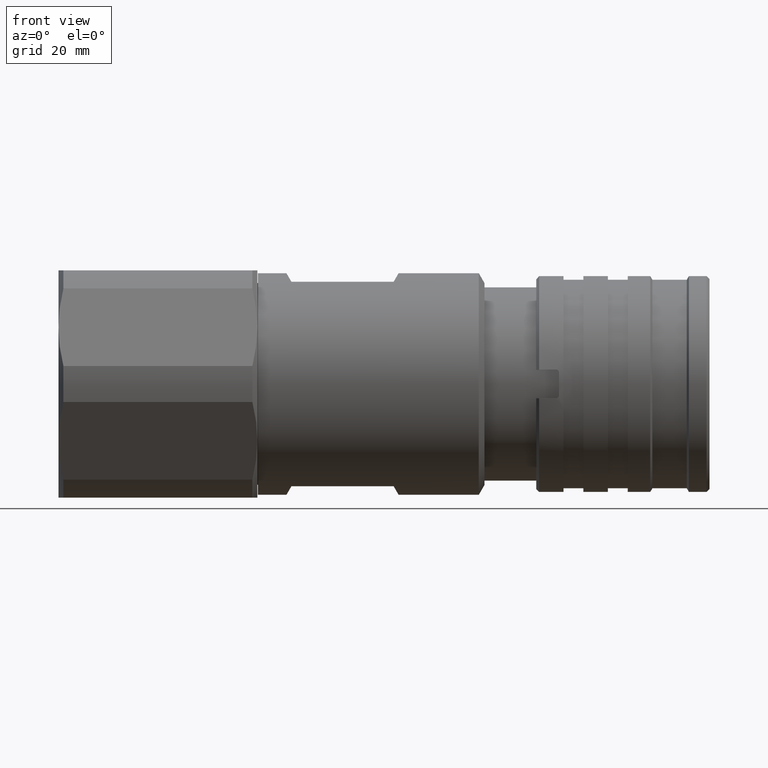
[diagram: clean part render]
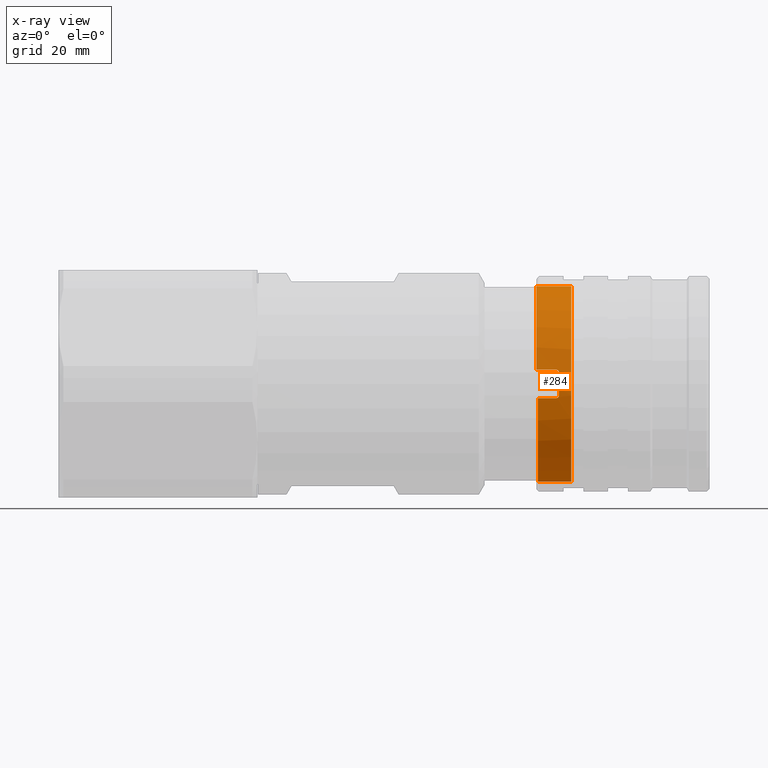
[diagram: x-ray — body ghosted, one internal face saturated and labeled with its STEP entity id]
A machine part, front view, then the same camera in x-ray: the body is ghosted and one INTERNAL B-rep face — a face not visible from any outside direction — is saturated and labeled: STEP entity #284.
In plain terms, the highlighted cylindrical surface (partial cylindrical patch) has radius 17.2 mm, axis along (-1, -0, -0).
Its self-contained STEP definition (entity closure, byte-faithful):
#281 = CARTESIAN_POINT ( 'NONE',  ( 22.39999999999999500, 0.0000000000000000000, 17.19999999999999900 ) ) ;
#283 = DIRECTION ( 'NONE',  ( -1.000000000000000000, -0.0000000000000000000, -0.0000000000000000000 ) ) ;
#284 = ADVANCED_FACE ( 'NONE', ( #2315 ), #2316, .F. ) ;
#306 = CARTESIAN_POINT ( 'NONE',  ( 22.39999999999999500, -17.01734409360050600, -2.499999999999995600 ) ) ;
#307 = DIRECTION ( 'NONE',  ( -1.000000000000000000, -0.0000000000000000000, -0.0000000000000000000 ) ) ;
#892 = CARTESIAN_POINT ( 'NONE',  ( 26.39999999999999500, -17.08332520325009800, 1.999999999999995800 ) ) ;
#893 = CARTESIAN_POINT ( 'NONE',  ( 26.39999999999999100, -17.06790551899001300, 2.131709740373209300 ) ) ;
#894 = CARTESIAN_POINT ( 'NONE',  ( 26.34631972666712600, -17.05108197392325700, 2.260376652877108800 ) ) ;
#895 = CARTESIAN_POINT ( 'NONE',  ( 26.16235259974453000, -17.02556566590858000, 2.445161109243595200 ) ) ;
#896 = CARTESIAN_POINT ( 'NONE',  ( 26.03263903549400700, -17.01734409360051000, 2.499999999999995600 ) ) ;
#897 = CARTESIAN_POINT ( 'NONE',  ( 25.89999999999999500, -17.01734409360050600, 2.499999999999995600 ) ) ;
#911 = CARTESIAN_POINT ( 'NONE',  ( 25.89999999999999500, -17.01734409360050600, -2.499999999999995600 ) ) ;
#912 = CARTESIAN_POINT ( 'NONE',  ( 26.03261894833201500, -17.01734409360051000, -2.499999999999996000 ) ) ;
#913 = CARTESIAN_POINT ( 'NONE',  ( 26.16210366188269600, -17.02554756240645200, -2.445282336775208300 ) ) ;
#914 = CARTESIAN_POINT ( 'NONE',  ( 26.34607698487314000, -17.05103192512699200, -2.260748945506581500 ) ) ;
#915 = CARTESIAN_POINT ( 'NONE',  ( 26.39999999999999100, -17.06790801662183600, -2.131688406444876400 ) ) ;
#916 = CARTESIAN_POINT ( 'NONE',  ( 26.39999999999999500, -17.08332520325009800, -1.999999999999995800 ) ) ;
#924 = CARTESIAN_POINT ( 'NONE',  ( 22.39999999999999500, 0.0000000000000000000, 0.0000000000000000000 ) ) ;
#925 = DIRECTION ( 'NONE',  ( -1.000000000000000000, -0.0000000000000000000, -0.0000000000000000000 ) ) ;
#926 = DIRECTION ( 'NONE',  ( 0.0000000000000000000, 0.0000000000000000000, 1.000000000000000000 ) ) ;
#934 = CARTESIAN_POINT ( 'NONE',  ( 22.39999999999999500, -17.01734409360050600, 2.499999999999995600 ) ) ;
#935 = DIRECTION ( 'NONE',  ( -1.000000000000000000, -0.0000000000000000000, -0.0000000000000000000 ) ) ;
#936 = CARTESIAN_POINT ( 'NONE',  ( 22.39999999999999500, 2.106392494533447400E-015, -17.19999999999999900 ) ) ;
#937 = DIRECTION ( 'NONE',  ( -1.000000000000000000, -0.0000000000000000000, -0.0000000000000000000 ) ) ;
#1008 = CARTESIAN_POINT ( 'NONE',  ( 22.39999999999999500, 0.0000000000000000000, 17.19999999999999900 ) ) ;
#1012 = CARTESIAN_POINT ( 'NONE',  ( 22.69999999999999900, 2.106392494533447400E-015, -17.19999999999999900 ) ) ;
#1024 = CARTESIAN_POINT ( 'NONE',  ( 22.39999999999999500, -17.01734409360051000, 2.499999999999995600 ) ) ;
#1046 = CARTESIAN_POINT ( 'NONE',  ( 22.69999999999999900, -17.01734409360050600, -2.499999999999995600 ) ) ;
#1056 = CARTESIAN_POINT ( 'NONE',  ( 26.39999999999999500, -17.08332520325009800, -1.999999999999995800 ) ) ;
#1057 = CARTESIAN_POINT ( 'NONE',  ( 26.39999999999999500, -17.08332520325009800, 1.999999999999995800 ) ) ;
#1068 = CARTESIAN_POINT ( 'NONE',  ( 28.55618708607941900, 2.106392494533447400E-015, -17.19999999999999900 ) ) ;
#1075 = CARTESIAN_POINT ( 'NONE',  ( 25.89999999999999500, -17.01734409360050600, -2.499999999999995600 ) ) ;
#1081 = CARTESIAN_POINT ( 'NONE',  ( 28.55618708607941900, 0.0000000000000000000, 17.19999999999999900 ) ) ;
#1091 = CARTESIAN_POINT ( 'NONE',  ( 25.89999999999999500, -17.01734409360050600, 2.499999999999995600 ) ) ;
#1325 = EDGE_CURVE ( 'NONE', #3627, #3614, #2646, .T. ) ;
#1342 = EDGE_CURVE ( 'NONE', #3603, #3602, #2662, .T. ) ;
#1351 = EDGE_CURVE ( 'NONE', #3558, #3592, #2669, .T. ) ;
#1429 = ORIENTED_EDGE ( 'NONE', *, *, #2333, .T. ) ;
#1431 = ORIENTED_EDGE ( 'NONE', *, *, #2347, .T. ) ;
#1432 = ORIENTED_EDGE ( 'NONE', *, *, #1351, .T. ) ;
#1438 = ORIENTED_EDGE ( 'NONE', *, *, #1707, .F. ) ;
#1439 = ORIENTED_EDGE ( 'NONE', *, *, #2343, .T. ) ;
#1443 = ORIENTED_EDGE ( 'NONE', *, *, #2351, .T. ) ;
#1444 = ORIENTED_EDGE ( 'NONE', *, *, #1712, .F. ) ;
#1445 = ORIENTED_EDGE ( 'NONE', *, *, #1342, .F. ) ;
#1446 = ORIENTED_EDGE ( 'NONE', *, *, #2352, .T. ) ;
#1447 = ORIENTED_EDGE ( 'NONE', *, *, #1325, .T. ) ;
#1523 = CIRCLE ( 'NONE', #2602, 17.19999999999999900 ) ;
#1528 = LINE ( 'NONE', #934, #1529 ) ;
#1529 = VECTOR ( 'NONE', #935, 1000.000000000000000 ) ;
#1530 = LINE ( 'NONE', #936, #1531 ) ;
#1531 = VECTOR ( 'NONE', #937, 1000.000000000000000 ) ;
#1707 = EDGE_CURVE ( 'NONE', #3627, #3554, #2748, .T. ) ;
#1712 = EDGE_CURVE ( 'NONE', #3621, #3592, #2754, .T. ) ;
#1847 = B_SPLINE_CURVE_WITH_KNOTS ( 'NONE', 3,
 ( #892, #893, #894, #895, #896, #897 ),
 .UNSPECIFIED., .F., .F.,
 ( 4, 2, 4 ),
 ( 0.0000000000000000000, 0.0003921826131485965500, 0.0007843652262971930900 ),
 .UNSPECIFIED. ) ;
#1868 = B_SPLINE_CURVE_WITH_KNOTS ( 'NONE', 3,
 ( #911, #912, #913, #914, #915, #916 ),
 .UNSPECIFIED., .F., .F.,
 ( 4, 2, 4 ),
 ( 0.0000000000000000000, 0.0003921816289859519400, 0.0007843632579719038700 ),
 .UNSPECIFIED. ) ;
#2084 = EDGE_LOOP ( 'NONE', ( #1447, #1446, #1432, #1444, #1439, #1445, #1429, #1443, #1431, #1438 ) ) ;
#2315 = FACE_OUTER_BOUND ( 'NONE', #2084, .T. ) ;
#2316 = CYLINDRICAL_SURFACE ( 'NONE', #2468, 17.19999999999999900 ) ;
#2333 = EDGE_CURVE ( 'NONE', #3603, #3637, #1847, .T. ) ;
#2343 = EDGE_CURVE ( 'NONE', #3621, #3602, #1868, .T. ) ;
#2347 = EDGE_CURVE ( 'NONE', #3570, #3554, #1523, .T. ) ;
#2351 = EDGE_CURVE ( 'NONE', #3637, #3570, #1528, .T. ) ;
#2352 = EDGE_CURVE ( 'NONE', #3614, #3558, #1530, .T. ) ;
#2468 = AXIS2_PLACEMENT_3D ( 'NONE', #3321, #3322, #3323 ) ;
#2482 = AXIS2_PLACEMENT_3D ( 'NONE', #3431, #3432, #3433 ) ;
#2491 = AXIS2_PLACEMENT_3D ( 'NONE', #3506, #3507, #3508 ) ;
#2495 = AXIS2_PLACEMENT_3D ( 'NONE', #3536, #3537, #3538 ) ;
#2602 = AXIS2_PLACEMENT_3D ( 'NONE', #924, #925, #926 ) ;
#2646 = CIRCLE ( 'NONE', #2482, 17.19999999999999900 ) ;
#2662 = CIRCLE ( 'NONE', #2491, 17.19999999999999900 ) ;
#2669 = CIRCLE ( 'NONE', #2495, 17.19999999999999900 ) ;
#2748 = LINE ( 'NONE', #281, #2749 ) ;
#2749 = VECTOR ( 'NONE', #283, 1000.000000000000000 ) ;
#2754 = LINE ( 'NONE', #306, #2756 ) ;
#2756 = VECTOR ( 'NONE', #307, 1000.000000000000000 ) ;
#3321 = CARTESIAN_POINT ( 'NONE',  ( 22.39999999999999500, 0.0000000000000000000, 0.0000000000000000000 ) ) ;
#3322 = DIRECTION ( 'NONE',  ( -1.000000000000000000, -0.0000000000000000000, -0.0000000000000000000 ) ) ;
#3323 = DIRECTION ( 'NONE',  ( 0.0000000000000000000, 0.0000000000000000000, 1.000000000000000000 ) ) ;
#3431 = CARTESIAN_POINT ( 'NONE',  ( 28.55618708607941900, 0.0000000000000000000, 0.0000000000000000000 ) ) ;
#3432 = DIRECTION ( 'NONE',  ( 1.000000000000000000, 0.0000000000000000000, 0.0000000000000000000 ) ) ;
#3433 = DIRECTION ( 'NONE',  ( 0.0000000000000000000, 0.0000000000000000000, -1.000000000000000000 ) ) ;
#3506 = CARTESIAN_POINT ( 'NONE',  ( 26.39999999999999500, 0.0000000000000000000, 0.0000000000000000000 ) ) ;
#3507 = DIRECTION ( 'NONE',  ( 1.000000000000000000, 0.0000000000000000000, 0.0000000000000000000 ) ) ;
#3508 = DIRECTION ( 'NONE',  ( 0.0000000000000000000, 0.0000000000000000000, -1.000000000000000000 ) ) ;
#3536 = CARTESIAN_POINT ( 'NONE',  ( 22.69999999999999900, 0.0000000000000000000, 0.0000000000000000000 ) ) ;
#3537 = DIRECTION ( 'NONE',  ( -1.000000000000000000, -0.0000000000000000000, -0.0000000000000000000 ) ) ;
#3538 = DIRECTION ( 'NONE',  ( 0.0000000000000000000, 0.0000000000000000000, 1.000000000000000000 ) ) ;
#3554 = VERTEX_POINT ( 'NONE', #1008 ) ;
#3558 = VERTEX_POINT ( 'NONE', #1012 ) ;
#3570 = VERTEX_POINT ( 'NONE', #1024 ) ;
#3592 = VERTEX_POINT ( 'NONE', #1046 ) ;
#3602 = VERTEX_POINT ( 'NONE', #1056 ) ;
#3603 = VERTEX_POINT ( 'NONE', #1057 ) ;
#3614 = VERTEX_POINT ( 'NONE', #1068 ) ;
#3621 = VERTEX_POINT ( 'NONE', #1075 ) ;
#3627 = VERTEX_POINT ( 'NONE', #1081 ) ;
#3637 = VERTEX_POINT ( 'NONE', #1091 ) ;